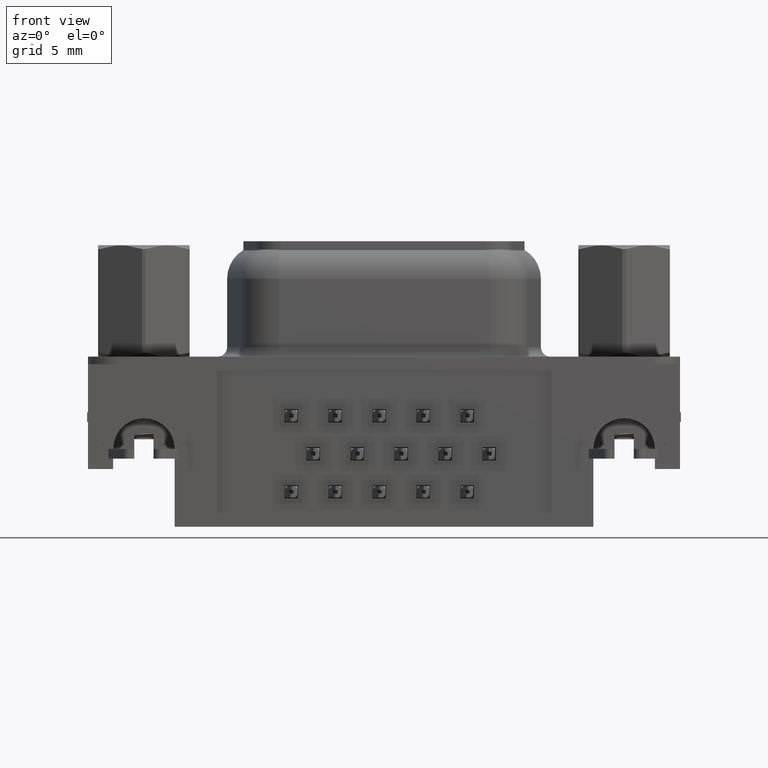
[diagram: clean part render]
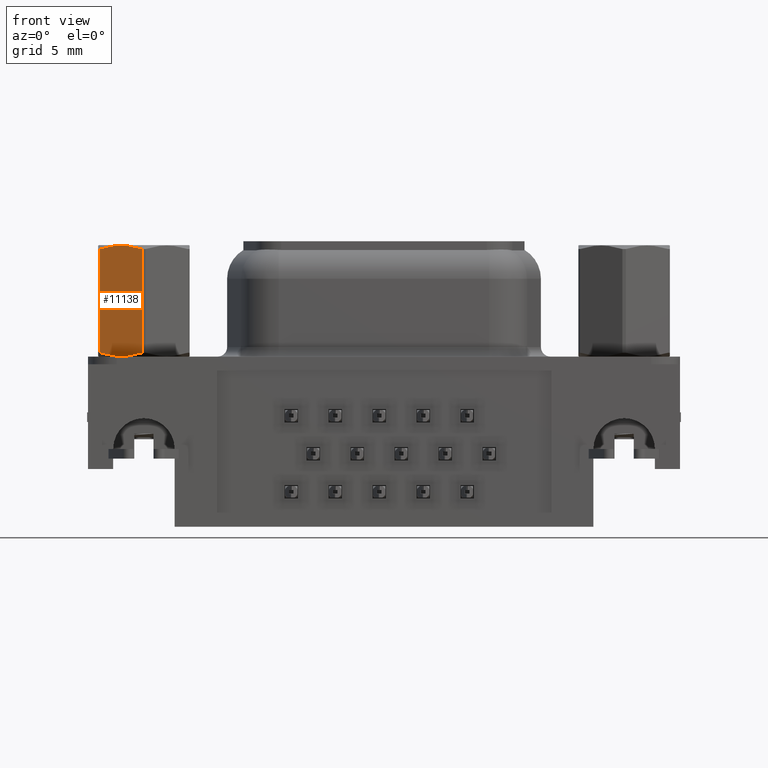
[diagram: same view with one face highlighted and labeled with its STEP entity id]
A machine part, front view. The second image highlights one B-rep face of the part: STEP entity #11138.
In plain terms, the highlighted planar face has unit normal (-0.5, -0.866, -0).
Its self-contained STEP definition (entity closure, byte-faithful):
#106 = B_SPLINE_CURVE_WITH_KNOTS ( 'NONE', 3,
 ( #23661, #791, #5912, #8469, #26243, #10983, #28861, #13557 ),
 .UNSPECIFIED., .F., .F.,
 ( 4, 2, 2, 4 ),
 ( 7.538285214500576200E-007, 0.001282653025697932400, 0.001923602624286173300, 0.002564552222874414600 ),
 .UNSPECIFIED. ) ;
#791 = CARTESIAN_POINT ( 'NONE',  ( -0.4491694541857624800, -2.490302551729707000, 6.111270679307116500 ) ) ;
#1219 = CARTESIAN_POINT ( 'NONE',  ( -0.08847422622855222200, -2.698550038686196500, 0.6020725942163576100 ) ) ;
#3195 = AXIS2_PLACEMENT_3D ( 'NONE', #20355, #5165, #22902 ) ;
#3483 = LINE ( 'NONE', #26456, #29008 ) ;
#5165 = DIRECTION ( 'NONE',  ( -0.5000000000000001100, -0.8660254037844386000, -3.023711536277457000E-015 ) ) ;
#5912 = CARTESIAN_POINT ( 'NONE',  ( -0.8145017841914092800, -2.279377832657273100, 6.181562900015308100 ) ) ;
#6475 = VERTEX_POINT ( 'NONE', #1219 ) ;
#6713 = ORIENTED_EDGE ( 'NONE', *, *, #14941, .T. ) ;
#6903 = CARTESIAN_POINT ( 'NONE',  ( -2.292775773771448000, -1.425895946837196800, 0.6020725942163620600 ) ) ;
#7071 = VERTEX_POINT ( 'NONE', #21144 ) ;
#7520 = VECTOR ( 'NONE', #18281, 1000.000000000000000 ) ;
#8209 = ORIENTED_EDGE ( 'NONE', *, *, #24194, .T. ) ;
#8469 = CARTESIAN_POINT ( 'NONE',  ( -1.373793695184910600, -1.956470497289594500, 6.182152676321180700 ) ) ;
#8514 = DIRECTION ( 'NONE',  ( 0.0000000000000000000, -3.491481338843133400E-015, 1.000000000000000000 ) ) ;
#9094 = LINE ( 'NONE', #15702, #7520 ) ;
#9560 = CARTESIAN_POINT ( 'NONE',  ( -1.566748215808591000, -1.845068152866137700, 0.4184370999846775400 ) ) ;
#10334 = FACE_OUTER_BOUND ( 'NONE', #23168, .T. ) ;
#10983 = CARTESIAN_POINT ( 'NONE',  ( -1.929936231792699100, -1.635381454071287400, 6.101102322303879600 ) ) ;
#11138 = ADVANCED_FACE ( 'NONE', ( #10334 ), #20256, .T. ) ;
#12088 = CARTESIAN_POINT ( 'NONE',  ( -0.8197600140121060800, -2.276341992254813400, 0.4350536658932591700 ) ) ;
#13044 = EDGE_CURVE ( 'NONE', #14002, #25570, #106, .T. ) ;
#13557 = CARTESIAN_POINT ( 'NONE',  ( -2.292775773771447600, -1.425895946837215700, 5.997927405783626000 ) ) ;
#14002 = VERTEX_POINT ( 'NONE', #15053 ) ;
#14144 = EDGE_CURVE ( 'NONE', #7071, #6475, #29880, .T. ) ;
#14667 = CARTESIAN_POINT ( 'NONE',  ( -0.2691543423796098900, -2.594234324989169900, 0.5452964734421866800 ) ) ;
#14941 = EDGE_CURVE ( 'NONE', #25570, #7071, #9094, .T. ) ;
#15053 = CARTESIAN_POINT ( 'NONE',  ( -0.08847422622855287400, -2.698550038686215100, 5.997927405783622500 ) ) ;
#15702 = CARTESIAN_POINT ( 'NONE',  ( -2.292775773771448000, -1.425895946837207700, 3.792310433223467400 ) ) ;
#18040 = CARTESIAN_POINT ( 'NONE',  ( -2.292775773771447600, -1.425895946837215700, 5.997927405783626000 ) ) ;
#18223 = ORIENTED_EDGE ( 'NONE', *, *, #14144, .T. ) ;
#18281 = DIRECTION ( 'NONE',  ( -0.0000000000000000000, 3.491481338843133400E-015, -1.000000000000000000 ) ) ;
#20256 = PLANE ( 'NONE',  #3195 ) ;
#20355 = CARTESIAN_POINT ( 'NONE',  ( -2.381250000000000100, -1.374815328507782700, -3.800000000000005200 ) ) ;
#21144 = CARTESIAN_POINT ( 'NONE',  ( -2.292775773771448000, -1.425895946837196800, 0.6020725942163620600 ) ) ;
#22177 = CARTESIAN_POINT ( 'NONE',  ( -1.932080545814238300, -1.634143433793704400, 0.4887293206928686700 ) ) ;
#22902 = DIRECTION ( 'NONE',  ( 0.8660254037844386000, -0.5000000000000001100, -1.745740669421567100E-015 ) ) ;
#23168 = EDGE_LOOP ( 'NONE', ( #18223, #8209, #32732, #6713 ) ) ;
#23661 = CARTESIAN_POINT ( 'NONE',  ( -0.08847422622855287400, -2.698550038686215100, 5.997927405783622500 ) ) ;
#24194 = EDGE_CURVE ( 'NONE', #6475, #14002, #3483, .T. ) ;
#25570 = VERTEX_POINT ( 'NONE', #18040 ) ;
#26243 = CARTESIAN_POINT ( 'NONE',  ( -1.561489985987894600, -1.848103993268598500, 6.164946334106726800 ) ) ;
#26456 = CARTESIAN_POINT ( 'NONE',  ( -0.08847422622855222200, -2.698550038686207600, 3.792310433223462500 ) ) ;
#27387 = CARTESIAN_POINT ( 'NONE',  ( -1.007456304815089100, -2.167975488233816700, 0.4178473236788027300 ) ) ;
#28861 = CARTESIAN_POINT ( 'NONE',  ( -2.112095657620390600, -1.530211660534242000, 6.054703526557798200 ) ) ;
#29008 = VECTOR ( 'NONE', #8514, 1000.000000000000000 ) ;
#29880 = B_SPLINE_CURVE_WITH_KNOTS ( 'NONE', 3,
 ( #6903, #22177, #9560, #27387, #12088, #29986, #14667, #32549 ),
 .UNSPECIFIED., .F., .F.,
 ( 4, 2, 2, 4 ),
 ( 7.538285215064103000E-007, 0.001282653025697989200, 0.001923602624286230500, 0.002564552222874471800 ),
 .UNSPECIFIED. ) ;
#29986 = CARTESIAN_POINT ( 'NONE',  ( -0.4513137682073014000, -2.489064531452124900, 0.4988976776961057100 ) ) ;
#32549 = CARTESIAN_POINT ( 'NONE',  ( -0.08847422622855222200, -2.698550038686196500, 0.6020725942163576100 ) ) ;
#32732 = ORIENTED_EDGE ( 'NONE', *, *, #13044, .T. ) ;